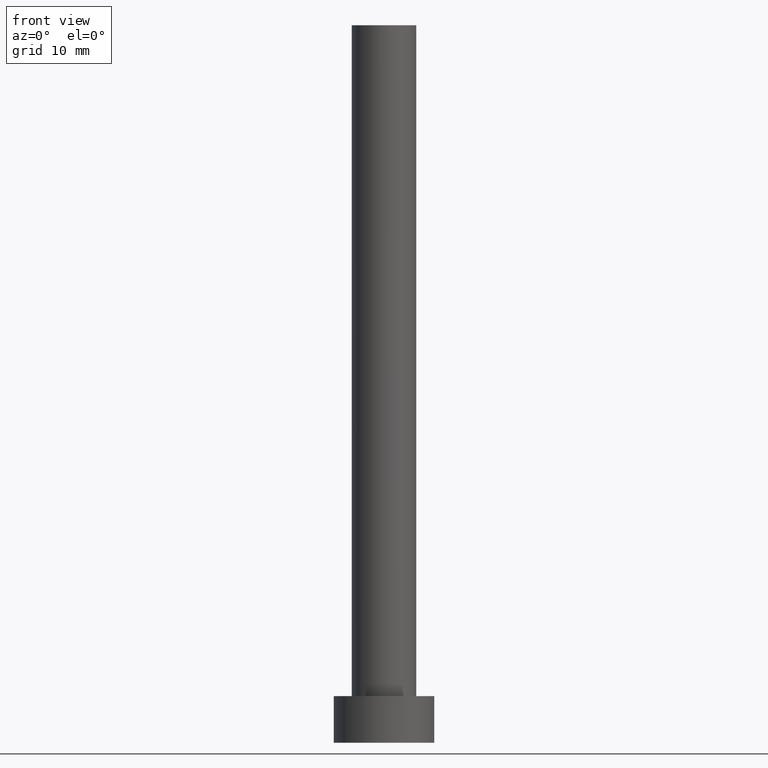
[diagram: clean part render]
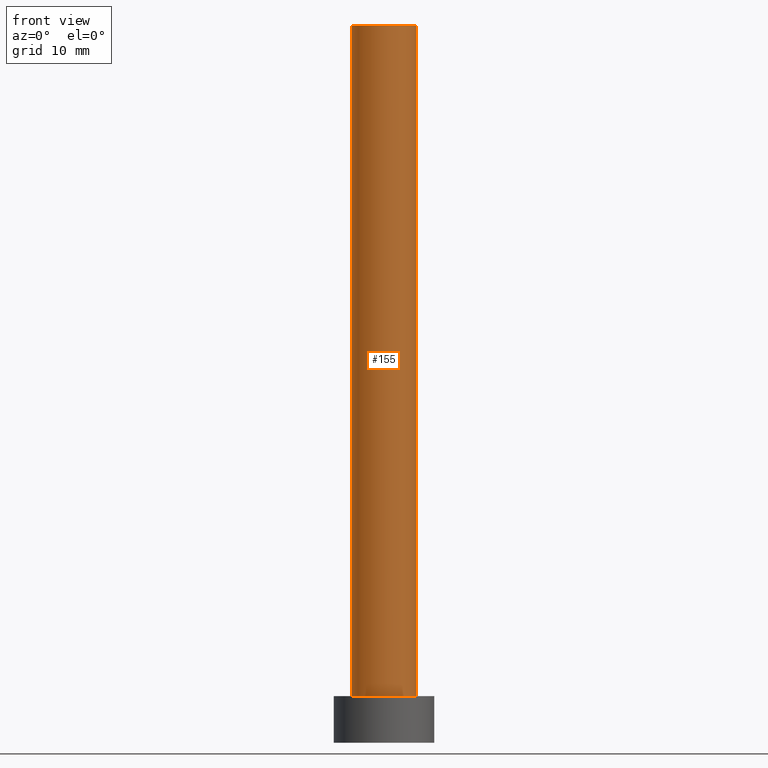
[diagram: same view with one face highlighted and labeled with its STEP entity id]
A machine part, front view. The second image highlights one B-rep face of the part: STEP entity #155.
In plain terms, the highlighted cylindrical surface (edge-blend (fillet) strip) has radius 4.5 mm, axis along (-0, -0, -1).
Its self-contained STEP definition (entity closure, byte-faithful):
#8 = CARTESIAN_POINT ( 'NONE',  ( 0.000000000000000000, 0.000000000000000000, 100.0000000000000000 ) ) ;
#10 = CARTESIAN_POINT ( 'NONE',  ( 4.500000000000000888, 5.510910596163089556E-16, 6.500000000000000000 ) ) ;
#13 = AXIS2_PLACEMENT_3D ( 'NONE', #38, #57, #78 ) ;
#29 = DIRECTION ( 'NONE',  ( -0.000000000000000000, -0.000000000000000000, -1.000000000000000000 ) ) ;
#31 = ORIENTED_EDGE ( 'NONE', *, *, #212, .F. ) ;
#34 = VERTEX_POINT ( 'NONE', #65 ) ;
#38 = CARTESIAN_POINT ( 'NONE',  ( 0.000000000000000000, 0.000000000000000000, 6.500000000000000000 ) ) ;
#40 = DIRECTION ( 'NONE',  ( 1.000000000000000000, 0.000000000000000000, 0.000000000000000000 ) ) ;
#51 = LINE ( 'NONE', #199, #102 ) ;
#54 = DIRECTION ( 'NONE',  ( -1.000000000000000000, 0.000000000000000000, 0.000000000000000000 ) ) ;
#57 = DIRECTION ( 'NONE',  ( 0.000000000000000000, 0.000000000000000000, 1.000000000000000000 ) ) ;
#60 = CIRCLE ( 'NONE', #111, 4.500000000000000888 ) ;
#64 = ORIENTED_EDGE ( 'NONE', *, *, #174, .T. ) ;
#65 = CARTESIAN_POINT ( 'NONE',  ( -4.500000000000000888, 0.000000000000000000, 100.0000000000000000 ) ) ;
#66 = VERTEX_POINT ( 'NONE', #10 ) ;
#69 = CYLINDRICAL_SURFACE ( 'NONE', #228, 4.500000000000000888 ) ;
#73 = VECTOR ( 'NONE', #132, 1000.000000000000000 ) ;
#78 = DIRECTION ( 'NONE',  ( 1.000000000000000000, 0.000000000000000000, 0.000000000000000000 ) ) ;
#87 = CARTESIAN_POINT ( 'NONE',  ( 4.500000000000000888, 5.510910596163089556E-16, 100.0000000000000000 ) ) ;
#89 = EDGE_LOOP ( 'NONE', ( #217, #31, #64, #91 ) ) ;
#91 = ORIENTED_EDGE ( 'NONE', *, *, #230, .T. ) ;
#102 = VECTOR ( 'NONE', #116, 1000.000000000000000 ) ;
#108 = CARTESIAN_POINT ( 'NONE',  ( 0.000000000000000000, 0.000000000000000000, 100.0000000000000000 ) ) ;
#111 = AXIS2_PLACEMENT_3D ( 'NONE', #108, #180, #40 ) ;
#116 = DIRECTION ( 'NONE',  ( -0.000000000000000000, -0.000000000000000000, -1.000000000000000000 ) ) ;
#128 = LINE ( 'NONE', #150, #73 ) ;
#132 = DIRECTION ( 'NONE',  ( -0.000000000000000000, -0.000000000000000000, -1.000000000000000000 ) ) ;
#150 = CARTESIAN_POINT ( 'NONE',  ( -4.500000000000000888, 0.000000000000000000, 100.0000000000000000 ) ) ;
#155 = ADVANCED_FACE ( 'NONE', ( #167 ), #69, .T. ) ;
#158 = VERTEX_POINT ( 'NONE', #215 ) ;
#163 = EDGE_CURVE ( 'NONE', #211, #66, #51, .T. ) ;
#167 = FACE_OUTER_BOUND ( 'NONE', #89, .T. ) ;
#174 = EDGE_CURVE ( 'NONE', #34, #158, #128, .T. ) ;
#180 = DIRECTION ( 'NONE',  ( 0.000000000000000000, 0.000000000000000000, 1.000000000000000000 ) ) ;
#199 = CARTESIAN_POINT ( 'NONE',  ( 4.500000000000000888, 5.510910596163089556E-16, 100.0000000000000000 ) ) ;
#211 = VERTEX_POINT ( 'NONE', #87 ) ;
#212 = EDGE_CURVE ( 'NONE', #34, #211, #60, .T. ) ;
#215 = CARTESIAN_POINT ( 'NONE',  ( -4.500000000000000888, 0.000000000000000000, 6.500000000000000000 ) ) ;
#217 = ORIENTED_EDGE ( 'NONE', *, *, #163, .F. ) ;
#228 = AXIS2_PLACEMENT_3D ( 'NONE', #8, #29, #54 ) ;
#230 = EDGE_CURVE ( 'NONE', #158, #66, #250, .T. ) ;
#250 = CIRCLE ( 'NONE', #13, 4.500000000000000888 ) ;